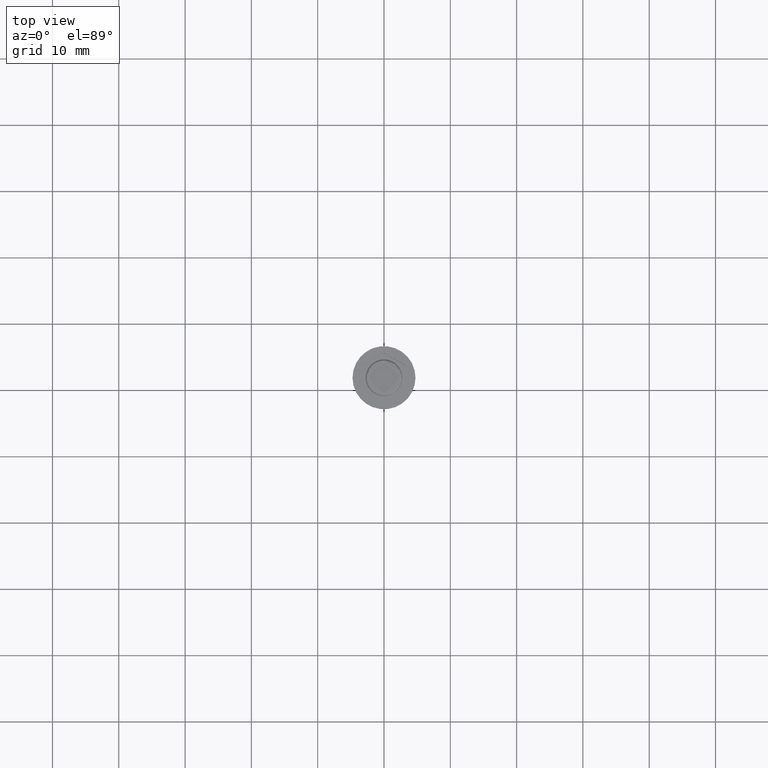
[diagram: clean part render]
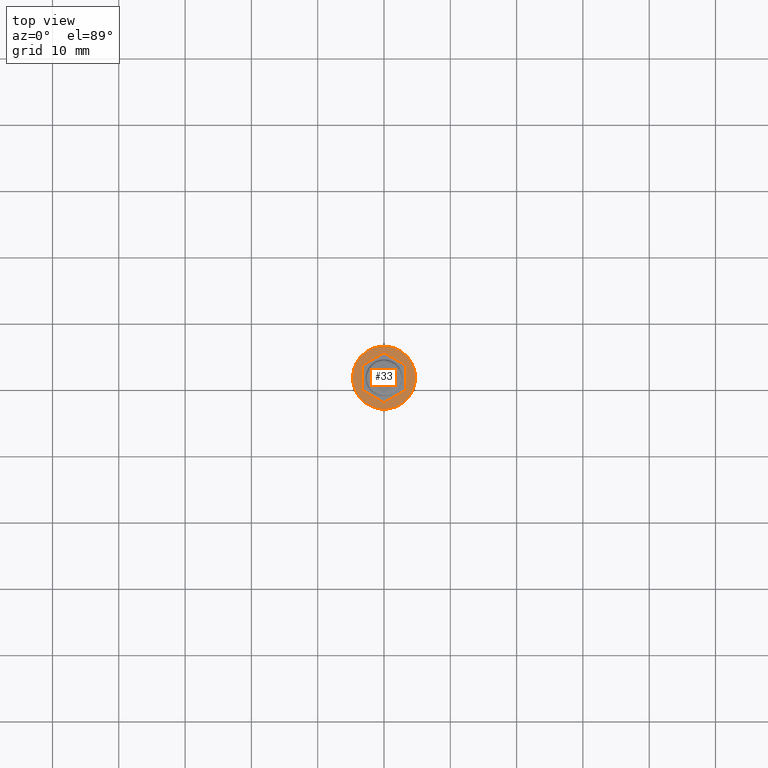
[diagram: same view with one face highlighted and labeled with its STEP entity id]
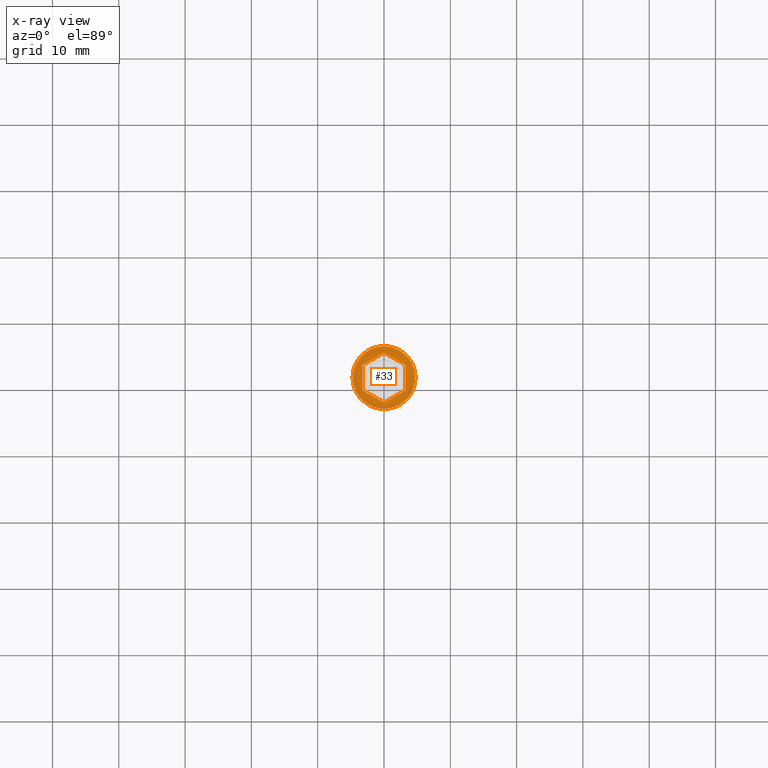
[diagram: x-ray of the same camera — body ghosted, the highlighted face saturated]
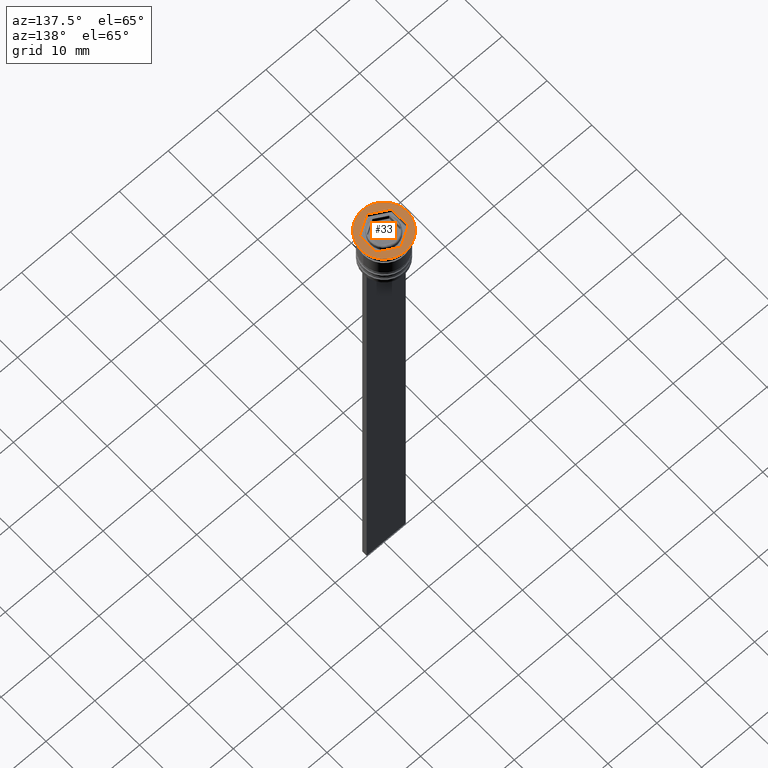
[diagram: same view with one face highlighted and labeled with its STEP entity id]
A machine part, top view. The second image highlights one B-rep face of the part: STEP entity #33.
The next image is the same camera in x-ray: the body ghosted, the highlighted face saturated — about 0% of this face is hidden behind the body in this view.
A second angle (auxiliary view) of the same face is appended — the face is thin or edge-on in the first view.
In plain terms, the highlighted planar face has unit normal (0, -0, 1).
Its self-contained STEP definition (entity closure, byte-faithful):
#21 = CARTESIAN_POINT ( 'NONE',  ( -2.112280747572084180E-16, -3.752776749732567918, 0.000000000000000000 ) ) ;
#33 = ADVANCED_FACE ( 'NONE', ( #623, #441 ), #1183, .T. ) ;
#50 = EDGE_CURVE ( 'NONE', #2106, #64, #1621, .T. ) ;
#60 = ORIENTED_EDGE ( 'NONE', *, *, #2230, .F. ) ;
#64 = VERTEX_POINT ( 'NONE', #2316 ) ;
#92 = DIRECTION ( 'NONE',  ( 1.000000000000000000, 0.000000000000000000, 0.000000000000000000 ) ) ;
#125 = CARTESIAN_POINT ( 'NONE',  ( 3.250000000000001332, 1.876388374866284181, 0.000000000000000000 ) ) ;
#169 = AXIS2_PLACEMENT_3D ( 'NONE', #1222, #1200, #92 ) ;
#171 = DIRECTION ( 'NONE',  ( 1.000000000000000000, 0.000000000000000000, 0.000000000000000000 ) ) ;
#172 = DIRECTION ( 'NONE',  ( 0.000000000000000000, -1.000000000000000000, 0.000000000000000000 ) ) ;
#198 = VECTOR ( 'NONE', #2115, 1000.000000000000000 ) ;
#214 = EDGE_CURVE ( 'NONE', #64, #865, #904, .T. ) ;
#245 = VERTEX_POINT ( 'NONE', #21 ) ;
#276 = DIRECTION ( 'NONE',  ( -0.8660254037844388186, 0.4999999999999997224, 0.000000000000000000 ) ) ;
#307 = ORIENTED_EDGE ( 'NONE', *, *, #2256, .F. ) ;
#317 = LINE ( 'NONE', #2153, #1471 ) ;
#358 = ORIENTED_EDGE ( 'NONE', *, *, #1464, .F. ) ;
#412 = VERTEX_POINT ( 'NONE', #1758 ) ;
#435 = CARTESIAN_POINT ( 'NONE',  ( 0.000000000000000000, 3.752776749732567030, 0.000000000000000000 ) ) ;
#441 = FACE_OUTER_BOUND ( 'NONE', #2312, .T. ) ;
#470 = VERTEX_POINT ( 'NONE', #1580 ) ;
#476 = EDGE_CURVE ( 'NONE', #533, #1999, #1208, .T. ) ;
#482 = ORIENTED_EDGE ( 'NONE', *, *, #476, .T. ) ;
#533 = VERTEX_POINT ( 'NONE', #724 ) ;
#551 = CARTESIAN_POINT ( 'NONE',  ( -3.250000000000000444, 1.876388374866282627, 0.000000000000000000 ) ) ;
#555 = ORIENTED_EDGE ( 'NONE', *, *, #50, .F. ) ;
#623 = FACE_BOUND ( 'NONE', #1093, .T. ) ;
#710 = LINE ( 'NONE', #1469, #1807 ) ;
#724 = CARTESIAN_POINT ( 'NONE',  ( -4.750000000000000000, 5.817072295949927426E-16, 0.000000000000000000 ) ) ;
#737 = AXIS2_PLACEMENT_3D ( 'NONE', #2055, #1728, #816 ) ;
#816 = DIRECTION ( 'NONE',  ( 1.000000000000000000, 0.000000000000000000, 0.000000000000000000 ) ) ;
#841 = CARTESIAN_POINT ( 'NONE',  ( 0.000000000000000000, 3.752776749732567030, 0.000000000000000000 ) ) ;
#865 = VERTEX_POINT ( 'NONE', #2172 ) ;
#899 = VECTOR ( 'NONE', #172, 1000.000000000000000 ) ;
#904 = LINE ( 'NONE', #551, #899 ) ;
#1007 = EDGE_CURVE ( 'NONE', #1999, #533, #2191, .T. ) ;
#1010 = VECTOR ( 'NONE', #1060, 1000.000000000000000 ) ;
#1060 = DIRECTION ( 'NONE',  ( -0.8660254037844385966, -0.5000000000000001110, 0.000000000000000000 ) ) ;
#1093 = EDGE_LOOP ( 'NONE', ( #307, #1793, #60, #358, #1459, #555 ) ) ;
#1139 = CARTESIAN_POINT ( 'NONE',  ( 4.750000000000000000, 0.000000000000000000, 0.000000000000000000 ) ) ;
#1183 = PLANE ( 'NONE',  #737 ) ;
#1200 = DIRECTION ( 'NONE',  ( -0.000000000000000000, -0.000000000000000000, 1.000000000000000000 ) ) ;
#1208 = CIRCLE ( 'NONE', #169, 4.750000000000000000 ) ;
#1222 = CARTESIAN_POINT ( 'NONE',  ( 0.000000000000000000, 0.000000000000000000, 0.000000000000000000 ) ) ;
#1238 = DIRECTION ( 'NONE',  ( 0.8660254037844385966, 0.5000000000000001110, 0.000000000000000000 ) ) ;
#1340 = AXIS2_PLACEMENT_3D ( 'NONE', #1859, #1814, #171 ) ;
#1382 = LINE ( 'NONE', #1776, #198 ) ;
#1459 = ORIENTED_EDGE ( 'NONE', *, *, #214, .F. ) ;
#1464 = EDGE_CURVE ( 'NONE', #865, #245, #710, .T. ) ;
#1469 = CARTESIAN_POINT ( 'NONE',  ( -3.250000000000000444, -1.876388374866284625, 0.000000000000000000 ) ) ;
#1471 = VECTOR ( 'NONE', #1238, 1000.000000000000000 ) ;
#1580 = CARTESIAN_POINT ( 'NONE',  ( 3.250000000000001332, 1.876388374866284181, 0.000000000000000000 ) ) ;
#1621 = LINE ( 'NONE', #841, #1010 ) ;
#1728 = DIRECTION ( 'NONE',  ( 0.000000000000000000, -0.000000000000000000, 1.000000000000000000 ) ) ;
#1744 = LINE ( 'NONE', #125, #2282 ) ;
#1758 = CARTESIAN_POINT ( 'NONE',  ( 3.250000000000000444, -1.876388374866283515, 0.000000000000000000 ) ) ;
#1776 = CARTESIAN_POINT ( 'NONE',  ( 3.250000000000000444, -1.876388374866283515, 0.000000000000000000 ) ) ;
#1793 = ORIENTED_EDGE ( 'NONE', *, *, #2127, .F. ) ;
#1807 = VECTOR ( 'NONE', #2209, 1000.000000000000114 ) ;
#1814 = DIRECTION ( 'NONE',  ( -0.000000000000000000, -0.000000000000000000, 1.000000000000000000 ) ) ;
#1859 = CARTESIAN_POINT ( 'NONE',  ( 0.000000000000000000, 0.000000000000000000, 0.000000000000000000 ) ) ;
#1999 = VERTEX_POINT ( 'NONE', #1139 ) ;
#2037 = ORIENTED_EDGE ( 'NONE', *, *, #1007, .T. ) ;
#2055 = CARTESIAN_POINT ( 'NONE',  ( 0.000000000000000000, 0.000000000000000000, 0.000000000000000000 ) ) ;
#2106 = VERTEX_POINT ( 'NONE', #435 ) ;
#2115 = DIRECTION ( 'NONE',  ( 2.311253228826398661E-16, 1.000000000000000000, 0.000000000000000000 ) ) ;
#2127 = EDGE_CURVE ( 'NONE', #412, #470, #1382, .T. ) ;
#2153 = CARTESIAN_POINT ( 'NONE',  ( -2.112280747572084180E-16, -3.752776749732567918, 0.000000000000000000 ) ) ;
#2172 = CARTESIAN_POINT ( 'NONE',  ( -3.250000000000000444, -1.876388374866284625, 0.000000000000000000 ) ) ;
#2191 = CIRCLE ( 'NONE', #1340, 4.750000000000000000 ) ;
#2209 = DIRECTION ( 'NONE',  ( 0.8660254037844387076, -0.4999999999999998890, 0.000000000000000000 ) ) ;
#2230 = EDGE_CURVE ( 'NONE', #245, #412, #317, .T. ) ;
#2256 = EDGE_CURVE ( 'NONE', #470, #2106, #1744, .T. ) ;
#2282 = VECTOR ( 'NONE', #276, 1000.000000000000000 ) ;
#2312 = EDGE_LOOP ( 'NONE', ( #2037, #482 ) ) ;
#2316 = CARTESIAN_POINT ( 'NONE',  ( -3.250000000000000444, 1.876388374866282627, 0.000000000000000000 ) ) ;